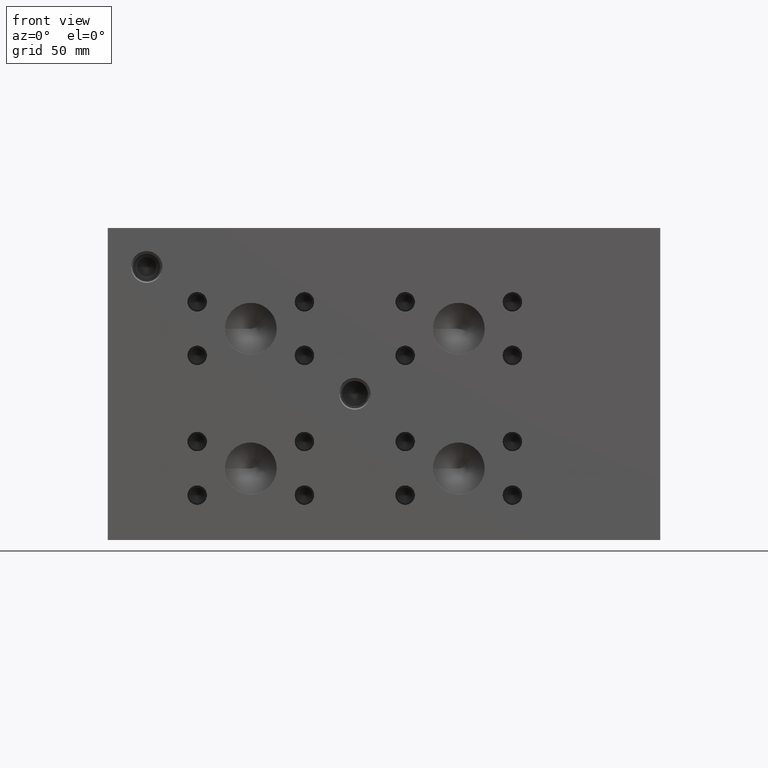
[diagram: clean part render]
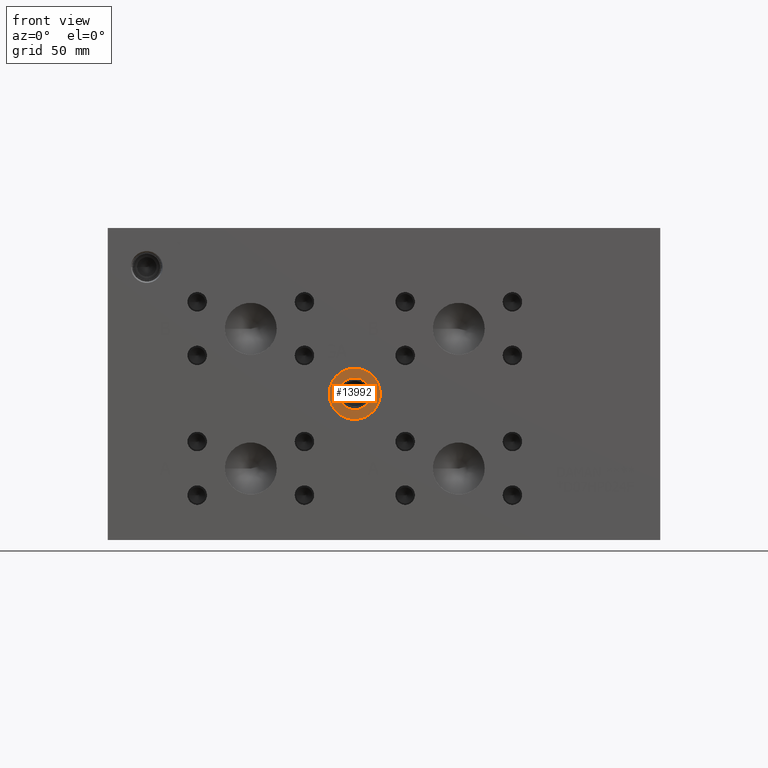
[diagram: same view with one face highlighted and labeled with its STEP entity id]
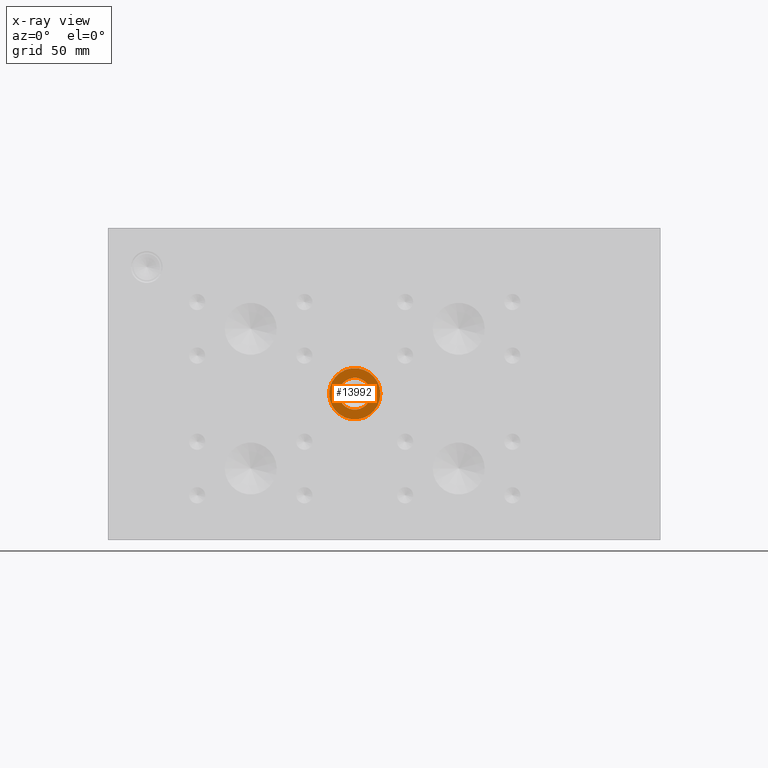
[diagram: x-ray of the same camera — body ghosted, the highlighted face saturated]
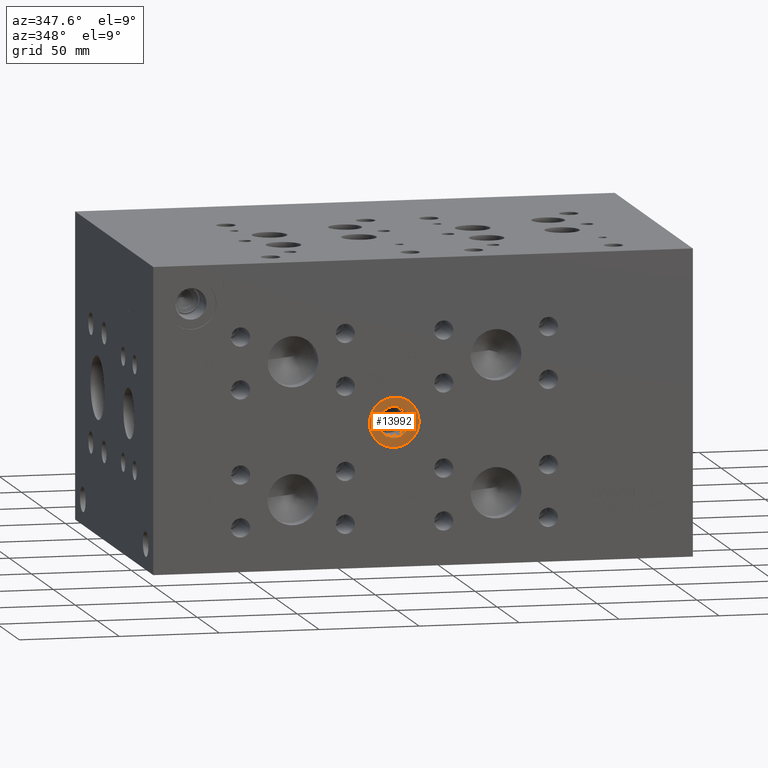
[diagram: same view with one face highlighted and labeled with its STEP entity id]
A machine part, front view. The second image highlights one B-rep face of the part: STEP entity #13992.
The next image is the same camera in x-ray: the body ghosted, the highlighted face saturated — about 0% of this face is hidden behind the body in this view.
A second angle (auxiliary view) of the same face is appended — the face is thin or edge-on in the first view.
In plain terms, the highlighted planar face has unit normal (0, 1, 0).
Its self-contained STEP definition (entity closure, byte-faithful):
#429=CIRCLE('',#14831,12.5095);
#430=CIRCLE('',#14832,12.5095);
#431=CIRCLE('',#14834,7.79780000000001);
#432=CIRCLE('',#14835,7.79780000000001);
#796=FACE_BOUND('',#2675,.T.);
#1226=PLANE('',#14833);
#1827=FACE_OUTER_BOUND('',#2674,.T.);
#2674=EDGE_LOOP('',(#12014,#12015));
#2675=EDGE_LOOP('',(#12016,#12017));
#6720=VERTEX_POINT('',#23391);
#6721=VERTEX_POINT('',#23393);
#6722=VERTEX_POINT('',#23397);
#6723=VERTEX_POINT('',#23398);
#8579=EDGE_CURVE('',#6720,#6721,#429,.T.);
#8580=EDGE_CURVE('',#6721,#6720,#430,.T.);
#8581=EDGE_CURVE('',#6722,#6723,#431,.T.);
#8582=EDGE_CURVE('',#6723,#6722,#432,.T.);
#12014=ORIENTED_EDGE('',*,*,#8580,.F.);
#12015=ORIENTED_EDGE('',*,*,#8579,.F.);
#12016=ORIENTED_EDGE('',*,*,#8581,.T.);
#12017=ORIENTED_EDGE('',*,*,#8582,.T.);
#13992=ADVANCED_FACE('',(#1827,#796),#1226,.F.);
#14831=AXIS2_PLACEMENT_3D('',#23394,#17683,#17684);
#14832=AXIS2_PLACEMENT_3D('',#23395,#17685,#17686);
#14833=AXIS2_PLACEMENT_3D('',#23396,#17687,#17688);
#14834=AXIS2_PLACEMENT_3D('',#23399,#17689,#17690);
#14835=AXIS2_PLACEMENT_3D('',#23400,#17691,#17692);
#17683=DIRECTION('center_axis',(0.,1.,0.));
#17684=DIRECTION('ref_axis',(1.,0.,0.));
#17685=DIRECTION('center_axis',(0.,1.,0.));
#17686=DIRECTION('ref_axis',(1.,0.,0.));
#17687=DIRECTION('center_axis',(0.,1.,0.));
#17688=DIRECTION('ref_axis',(0.,0.,1.));
#17689=DIRECTION('center_axis',(0.,1.,0.));
#17690=DIRECTION('ref_axis',(1.,0.,0.));
#17691=DIRECTION('center_axis',(0.,1.,0.));
#17692=DIRECTION('ref_axis',(1.,0.,0.));
#23391=CARTESIAN_POINT('',(108.1405,0.7874,71.4248));
#23393=CARTESIAN_POINT('',(133.1595,0.7874,71.4248));
#23394=CARTESIAN_POINT('Origin',(120.65,0.7874,71.4248));
#23395=CARTESIAN_POINT('Origin',(120.65,0.7874,71.4248));
#23396=CARTESIAN_POINT('Origin',(128.4478,0.7874,71.4248));
#23397=CARTESIAN_POINT('',(128.4478,0.7874,71.4248));
#23398=CARTESIAN_POINT('',(112.8522,0.787399999999998,71.4248));
#23399=CARTESIAN_POINT('Origin',(120.65,0.7874,71.4248));
#23400=CARTESIAN_POINT('Origin',(120.65,0.7874,71.4248));